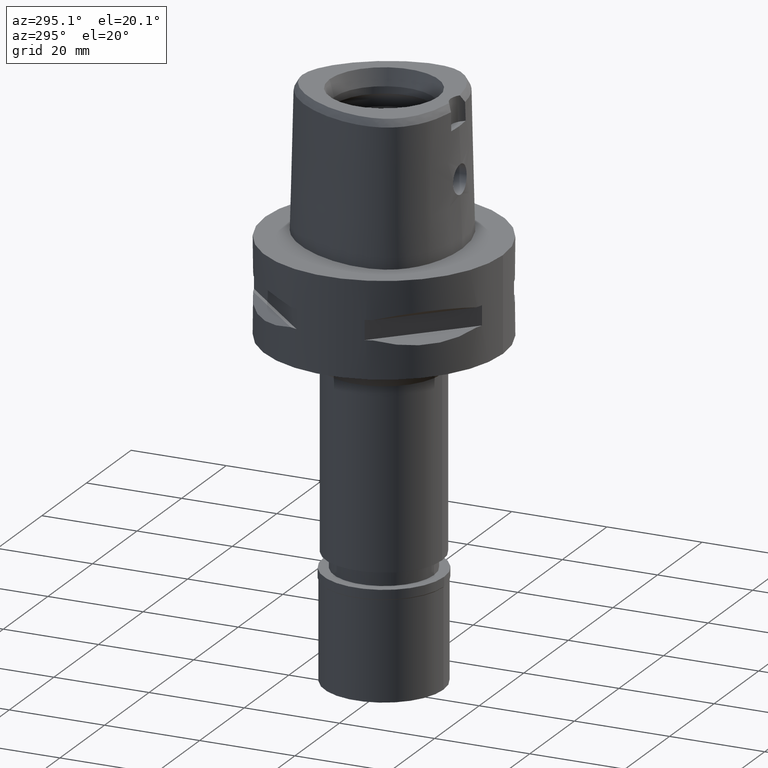
[diagram: clean part render]
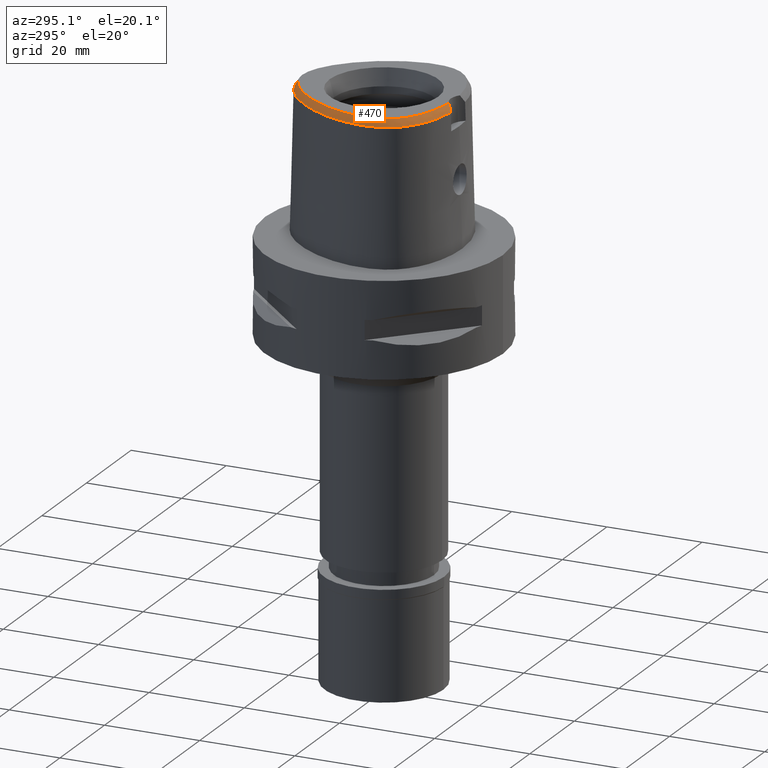
[diagram: same view with one face highlighted and labeled with its STEP entity id]
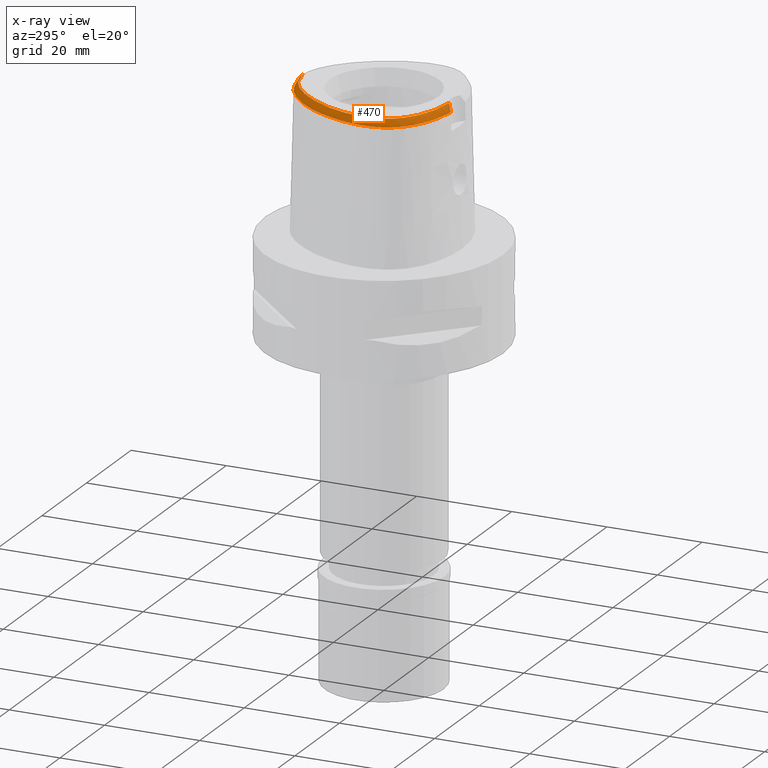
[diagram: x-ray of the same camera — body ghosted, the highlighted face saturated]
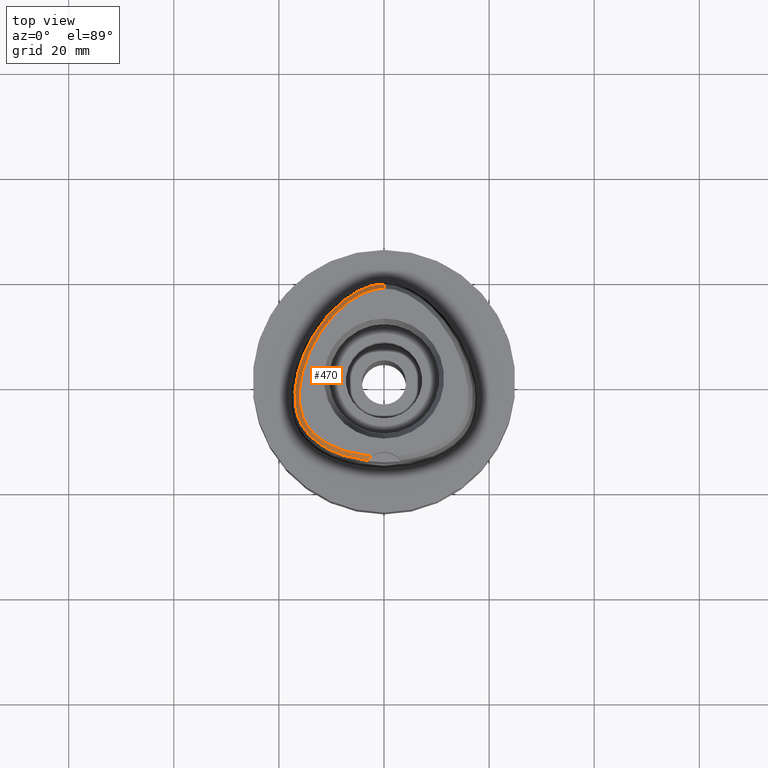
[diagram: same view with one face highlighted and labeled with its STEP entity id]
A machine part, auxiliary view. The second image highlights one B-rep face of the part: STEP entity #470.
The next image is the same camera in x-ray: the body ghosted, the highlighted face saturated — about 0% of this face is hidden behind the body in this view.
A second angle (top view) of the same face is appended — the face is thin or edge-on in the first view.
In plain terms, the highlighted face is a freeform B-spline surface patch.
Its self-contained STEP definition (entity closure, byte-faithful):
#7 = CARTESIAN_POINT ( 'NONE',  ( -6.301949014354000112E-11, 17.15328888647999861, 30.00000000000000000 ) ) ;
#18 = CARTESIAN_POINT ( 'NONE',  ( -0.5624906192435999985, 17.06293124028000108, 30.13803088546999831 ) ) ;
#42 = CARTESIAN_POINT ( 'NONE',  ( -6.186554757815999395, 15.30243447916999955, 29.55289571900000212 ) ) ;
#61 = CARTESIAN_POINT ( 'NONE',  ( -0.5679008307148402102, 17.14013367087397555, 30.00000000000072120 ) ) ;
#94 = CARTESIAN_POINT ( 'NONE',  ( -9.717333709818001708, -12.85804512101999997, 30.13803088923999951 ) ) ;
#114 = CARTESIAN_POINT ( 'NONE',  ( -11.49643627140000035, -12.26311884603000024, 29.55289482792999678 ) ) ;
#139 = CARTESIAN_POINT ( 'NONE',  ( -11.32247005622000025, -11.98503031335000202, 30.13803081457000133 ) ) ;
#180 = CARTESIAN_POINT ( 'NONE',  ( -13.94145098438000119, 5.343248248362000297, 30.13803078236999866 ) ) ;
#185 = CARTESIAN_POINT ( 'NONE',  ( -2.105137871620000212, -15.08222030327999796, 29.55289491099000188 ) ) ;
#189 = CARTESIAN_POINT ( 'NONE',  ( -8.556928701964253037, 13.07433695898570569, 29.99999999999581490 ) ) ;
#202 = CARTESIAN_POINT ( 'NONE',  ( -14.94777343444999929, 2.842147679571000118, 30.13803086633000206 ) ) ;
#210 = CARTESIAN_POINT ( 'NONE',  ( -6.716388962713000232, -14.30164738361999888, 29.55289574461000157 ) ) ;
#214 = CARTESIAN_POINT ( 'NONE',  ( -15.39727819200518155, 1.655076005305519571, 29.99999999999899103 ) ) ;
#231 = CARTESIAN_POINT ( 'NONE',  ( -16.98949126599000081, -4.446471530350000201, 28.38262323389999864 ) ) ;
#255 = CARTESIAN_POINT ( 'NONE',  ( -14.83341090222000069, 5.758522699042999626, 28.38262323189000114 ) ) ;
#260 = CARTESIAN_POINT ( 'NONE',  ( -2.079565656918000105, -14.75540138434000070, 30.13803078892999565 ) ) ;
#264 = CARTESIAN_POINT ( 'NONE',  ( -5.257871200566997416, 15.58649213536815203, 29.99999999999788258 ) ) ;
#283 = CARTESIAN_POINT ( 'NONE',  ( -16.26992570576999952, 1.900719788356000084, 28.38262574464000210 ) ) ;
#289 = CARTESIAN_POINT ( 'NONE',  ( -3.114184317365999988, -14.65881559798999945, 30.13803081346999946 ) ) ;
#309 = CARTESIAN_POINT ( 'NONE',  ( -15.84228689412705471, 3.460033471611907441, 28.52071192347010609 ) ) ;
#321 = CARTESIAN_POINT ( 'NONE',  ( -0.5854254213692000608, 17.39020541118000196, 29.55289459827999821 ) ) ;
#338 = CARTESIAN_POINT ( 'NONE',  ( -10.97230046639000101, 11.82696332493999947, 28.38262172189999788 ) ) ;
#343 = CARTESIAN_POINT ( 'NONE',  ( -3.051394002144999895, 16.53275062418000019, 30.13803095360999862 ) ) ;
#357 = CARTESIAN_POINT ( 'NONE',  ( -11.11900396222473475, 10.19116357425652808, 30.00000000000197531 ) ) ;
#367 = FACE_OUTER_BOUND ( 'NONE', #1651, .T. ) ;
#389 = CARTESIAN_POINT ( 'NONE',  ( -8.075610960039998787, 14.28481568027999948, 28.96775879640999918 ) ) ;
#394 = CARTESIAN_POINT ( 'NONE',  ( -15.84719131491000077, -8.666056156952000933, 28.38262188471999892 ) ) ;
#396 = CARTESIAN_POINT ( 'NONE',  ( -4.463815232395000443, 15.92905795201999730, 30.13803043148000071 ) ) ;
#421 = CARTESIAN_POINT ( 'NONE',  ( -3.379302300466000109, 17.46064606867000180, 28.38262122548000121 ) ) ;
#451 = VERTEX_POINT ( 'NONE', #1111 ) ;
#470 = ADVANCED_FACE ( 'NONE', ( #367 ), #555, .F. ) ;
#471 = CARTESIAN_POINT ( 'NONE',  ( -11.84436870174000056, -12.81929591138000113, 28.38262285464999835 ) ) ;
#548 = CARTESIAN_POINT ( 'NONE',  ( -13.58392508965000012, -11.08039586724999914, 28.96775835789999931 ) ) ;
#555 = B_SPLINE_SURFACE_WITH_KNOTS ( 'NONE', 3, 3, ( 
 ( #1929, #1536, #3048, #3075 ),
 ( #1902, #2641, #2216, #1204 ),
 ( #3417, #4889, #2620, #2692 ),
 ( #18, #321, #4484, #2598 ),
 ( #749, #3440, #4164, #4142 ),
 ( #4122, #1875, #3389, #3024 ),
 ( #1559, #4532, #2240, #1151 ),
 ( #343, #3366, #772, #421 ),
 ( #4192, #2287, #1854, #3788 ),
 ( #396, #1509, #4561, #3742 ),
 ( #1177, #703, #3342, #2666 ),
 ( #801, #42, #4590, #2309 ),
 ( #3814, #4864, #3435, #3067 ),
 ( #4583, #1169, #389, #4909 ),
 ( #3358, #1870, #4553, #1479 ),
 ( #2256, #2968, #4478, #1103 ),
 ( #2660, #1530, #3737, #338 ),
 ( #4880, #744, #1501, #2993 ),
 ( #4505, #2614, #4139, #4528 ),
 ( #1301, #3835, #2854, #4365 ),
 ( #4001, #2461, #3975, #4385 ),
 ( #180, #4799, #2826, #255 ),
 ( #1341, #3603, #1796, #2508 ),
 ( #202, #970, #3679, #4032 ),
 ( #1748, #2876, #668, #283 ),
 ( #3206, #610, #2483, #1046 ),
 ( #4828, #2182, #3278, #1390 ),
 ( #4776, #590, #2104, #1013 ),
 ( #2083, #2128, #1820, #3304 ),
 ( #3232, #640, #3627, #4409 ),
 ( #2440, #2807, #4339, #231 ),
 ( #2156, #1420, #3952, #1769 ),
 ( #2910, #946, #4430, #4063 ),
 ( #2536, #3582, #1722, #4751 ),
 ( #1366, #4725, #1447, #2941 ),
 ( #2561, #4085, #3263, #2168 ),
 ( #4786, #1402, #3690, #394 ),
 ( #1149, #3044, #1926, #1507 ),
 ( #2640, #4588, #3072, #2998 ),
 ( #3415, #1174, #2664, #4190 ),
 ( #1660, #2045, #4237, #2026 ),
 ( #2445, #3930, #548, #3561 ),
 ( #882, #3958, #851, #1705 ),
 ( #2352, #3861, #4709, #3512 ),
 ( #139, #114, #3491, #471 ),
 ( #4660, #1282, #2004, #2810 ),
 ( #94, #4297, #908, #3118 ),
 ( #2400, #1251, #3906, #2739 ),
 ( #4266, #1684, #2516, #1775 ),
 ( #4389, #210, #1454, #2860 ),
 ( #2948, #3283, #2885, #995 ),
 ( #1077, #4757, #2465, #1397 ),
 ( #289, #4835, #3585, #2566 ),
 ( #648, #1020, #2160, #1372 ),
 ( #260, #185, #4732, #3634 ),
 ( #1729, #1344, #2487, #4806 ) ),
 .UNSPECIFIED., .F., .F., .F.,
 ( 4, 1, 1, 1, 1, 1, 1, 1, 1, 1, 1, 1, 1, 1, 1, 1, 1, 1, 1, 1, 1, 1, 1, 1, 1, 1, 1, 1, 1, 1, 1, 1, 1, 1, 1, 1, 1, 1, 1, 1, 1, 1, 1, 1, 1, 1, 1, 1, 1, 1, 1, 1, 1, 4 ),
 ( 4, 4 ),
 ( -0.01581534407490000141, 0.0000000000000000000, 0.01988866185210999907, 0.03977732370550000202, 0.05966598555888999456, 0.07955464741227999403, 0.09944330926566999351, 0.1193319711189999993, 0.1392206329725000080, 0.1591092948258999995, 0.1789979566792000154, 0.1988866185326000069, 0.2187752803859999984, 0.2386639422393999899, 0.2585526040928000091, 0.2784412659462000006, 0.2983299277995000165, 0.3182185896529999836, 0.3381072515063999750, 0.3579959133596999910, 0.3778845752130999824, 0.3977732370665000294, 0.4176618989199999965, 0.4375505607732999569, 0.4574392226267000039, 0.4773278844800999954, 0.4972165463333999558, 0.5171052081869000894, 0.5369938700402999698, 0.5568825318935999302, 0.5767711937470000327, 0.5966598556004999443, 0.6165485174538000157, 0.6364371793072000072, 0.6563258411605999987, 0.6762145030139999902, 0.6961031648674000927, 0.7159918267207999731, 0.7358804885742000756, 0.7557691504275000360, 0.7756578122808999165, 0.7955464741344000501, 0.8154351359877000105, 0.8353237978411000020, 0.8552124596944999935, 0.8751011215478000649, 0.8949897834012999764, 0.9148784452547000789, 0.9347671071080999594, 0.9546557689613999198, 0.9745444308149000534, 0.9944330926682999339, 1.000000000000000000, 1.006911813929000088 ),
 ( -0.07048919362354999496, 1.070525133128000128 ),
 .UNSPECIFIED. ) ;
#583 = VERTEX_POINT ( 'NONE', #1518 ) ;
#590 = CARTESIAN_POINT ( 'NONE',  ( -16.29009670242000141, -1.630379163938999953, 29.55289450592000122 ) ) ;
#596 = CARTESIAN_POINT ( 'NONE',  ( -15.51623783590409644, -7.150856098906031022, 29.99999999999568701 ) ) ;
#610 = CARTESIAN_POINT ( 'NONE',  ( -15.93442307427999793, 0.5441272224256999968, 29.55289574936000108 ) ) ;
#612 = EDGE_CURVE ( 'NONE', #451, #2983, #3619, .T. ) ;
#625 = CARTESIAN_POINT ( 'NONE',  ( -11.92713521269342181, 9.060544494662234882, 29.99999999999836930 ) ) ;
#640 = CARTESIAN_POINT ( 'NONE',  ( -16.37604273856999626, -3.539743260772000077, 29.55289472451999799 ) ) ;
#648 = CARTESIAN_POINT ( 'NONE',  ( -2.369044125210999940, -14.73185658134999976, 30.13803078972999927 ) ) ;
#652 = CARTESIAN_POINT ( 'NONE',  ( -9.420854217682926190, 12.20577134109916173, 30.00000000000076739 ) ) ;
#666 = CARTESIAN_POINT ( 'NONE',  ( -7.523733151595394020, 15.26501052509573242, 28.52071192347010609 ) ) ;
#668 = CARTESIAN_POINT ( 'NONE',  ( -15.95421859601000136, 1.811850585665000013, 28.96776068573999652 ) ) ;
#669 = B_SPLINE_CURVE_WITH_KNOTS ( 'NONE', 3,
 ( #2545, #4810, #2863, #998, #4155, #2633, #2920, #4736, #2469, #1892, #4070, #3638, #4046, #2165, #2491, #3610, #3986, #4761, #1780, #3261, #596, #3017, #2113, #1756, #677, #1400, #2520, #4012, #2891, #3241, #214, #2252, #1375, #3756, #1025, #4392, #625, #357, #3287, #652, #189, #3660, #3588, #1431, #264, #1803, #3383, #1526, #1733, #4904, #1349, #61, #1968, #7 ),
 .UNSPECIFIED., .F., .F.,
 ( 4, 1, 1, 1, 1, 1, 1, 1, 1, 1, 1, 1, 1, 1, 1, 1, 1, 1, 1, 1, 1, 1, 1, 1, 1, 1, 1, 1, 1, 1, 1, 1, 1, 1, 1, 1, 1, 1, 1, 1, 1, 1, 1, 1, 1, 1, 1, 1, 1, 1, 1, 4 ),
 ( 0.0000000000000000000, 0.005566907331700066131, 0.02545556918509994659, 0.04534423103860008020, 0.06523289289190004059, 0.08512155474529992105, 0.1050102165987000236, 0.1248988784521999351, 0.1447875403055000065, 0.1646762021588999980, 0.1845648640122999895, 0.2044535258655999499, 0.2243421877191000835, 0.2442308495724999640, 0.2641195114257999244, 0.2840081732792000269, 0.3038968351325999073, 0.3237854969860000098, 0.3436741588394000013, 0.3635628206927999928, 0.3834514825461999843, 0.4033401443995000557, 0.4232288062529999673, 0.4431174681064000698, 0.4630061299597000302, 0.4828947918130999106, 0.5027834536666000442, 0.5226721155199000046, 0.5425607773732999961, 0.5624494392267000986, 0.5823381010799999480, 0.6022267629334999706, 0.6221154247869000731, 0.6420040866403000646, 0.6618927484936000250, 0.6817814103470000164, 0.7016700722005000390, 0.7215587340537999994, 0.7414473959071999909, 0.7613360577605999824, 0.7812247196139999739, 0.8011133814673999654, 0.8210020433207999568, 0.8408907051741000283, 0.8607793670275000197, 0.8806680288810000423, 0.9005566907343299787, 0.9204453525877199782, 0.9403340144411099777, 0.9602226762944999772, 0.9801113381478899766, 1.000000000000000000 ),
 .UNSPECIFIED. ) ;
#677 = CARTESIAN_POINT ( 'NONE',  ( -16.08550869466741418, -4.376322360225388231, 30.00000000000387601 ) ) ;
#703 = CARTESIAN_POINT ( 'NONE',  ( -5.384285942371000111, 15.80291348866999890, 29.55289641946000145 ) ) ;
#744 = CARTESIAN_POINT ( 'NONE',  ( -11.31899364911999939, 10.34217618864000166, 29.55289486231000140 ) ) ;
#749 = CARTESIAN_POINT ( 'NONE',  ( -1.149432066685000198, 17.00197830347000050, 30.13803089093999787 ) ) ;
#772 = CARTESIAN_POINT ( 'NONE',  ( -3.269999534359000037, 17.15134758717999830, 28.96775780152000124 ) ) ;
#801 = CARTESIAN_POINT ( 'NONE',  ( -6.004402664135999323, 15.02965676946999807, 30.13803053947999899 ) ) ;
#851 = CARTESIAN_POINT ( 'NONE',  ( -13.01840081075000199, -11.57534735946999938, 28.96775835466999993 ) ) ;
#882 = CARTESIAN_POINT ( 'NONE',  ( -12.60310728760000032, -11.06743747109999987, 30.13803087963999872 ) ) ;
#908 = CARTESIAN_POINT ( 'NONE',  ( -9.995719519109000473, -13.45205045896999962, 28.96775828292999933 ) ) ;
#946 = CARTESIAN_POINT ( 'NONE',  ( -16.11838250522000138, -5.923322950403999698, 29.55289460343999863 ) ) ;
#970 = CARTESIAN_POINT ( 'NONE',  ( -15.25816821456000127, 2.948074670152000198, 29.55289466027000245 ) ) ;
#995 = CARTESIAN_POINT ( 'NONE',  ( -5.628928192961000221, -15.24327083605000155, 28.38262333496999901 ) ) ;
#998 = CARTESIAN_POINT ( 'NONE',  ( -4.150496093830849276, -14.59917355180183129, 29.99999999999942446 ) ) ;
#1011 = CARTESIAN_POINT ( 'NONE',  ( -1.893775706185675922, 17.84807082153568203, 28.52071192347010253 ) ) ;
#1013 = CARTESIAN_POINT ( 'NONE',  ( -16.94252281717000130, -1.562012150778999908, 28.38262168981999878 ) ) ;
#1020 = CARTESIAN_POINT ( 'NONE',  ( -2.398221394487000335, -15.05838242436000129, 29.55289490839000166 ) ) ;
#1025 = CARTESIAN_POINT ( 'NONE',  ( -13.38439869301224583, 6.635703175839059220, 29.99999999999688427 ) ) ;
#1046 = CARTESIAN_POINT ( 'NONE',  ( -16.57473080096999851, 0.6865959521810000021, 28.38262618787999614 ) ) ;
#1077 = CARTESIAN_POINT ( 'NONE',  ( -4.138298135022999702, -14.52277485075999941, 30.13803091476000162 ) ) ;
#1103 = CARTESIAN_POINT ( 'NONE',  ( -10.08139982236999899, 12.82667832543000053, 28.38262403451999916 ) ) ;
#1111 = CARTESIAN_POINT ( 'NONE',  ( -2.940965197940999906E-11, 17.98202997909999823, 28.52071728569000086 ) ) ;
#1121 = CARTESIAN_POINT ( 'NONE',  ( -14.26907056455281086, -10.79012254419703964, 28.52071192347010609 ) ) ;
#1149 = CARTESIAN_POINT ( 'NONE',  ( -14.69714516587999853, -8.704381754124000281, 30.13803085658999947 ) ) ;
#1151 = CARTESIAN_POINT ( 'NONE',  ( -2.656981870916999888, 17.68886659922000248, 28.38262205176999942 ) ) ;
#1169 = CARTESIAN_POINT ( 'NONE',  ( -7.863056663427998139, 14.03502177028000020, 29.55289480848999872 ) ) ;
#1174 = CARTESIAN_POINT ( 'NONE',  ( -14.27452215424000137, -9.865631361213999639, 29.55289480134000257 ) ) ;
#1177 = CARTESIAN_POINT ( 'NONE',  ( -5.218844298452999908, 15.51967829031999990, 30.13803032323000153 ) ) ;
#1204 = CARTESIAN_POINT ( 'NONE',  ( 0.3385944463789999914, 18.05476595133999851, 28.38262226155999812 ) ) ;
#1251 = CARTESIAN_POINT ( 'NONE',  ( -8.902922939647000433, -13.56953361064000063, 29.55289466238999907 ) ) ;
#1277 = B_SPLINE_CURVE_WITH_KNOTS ( 'NONE', 3,
 ( #4874, #1495, #2984, #2205, #4497, #3704, #1121, #4855, #4426, #2607, #1521, #4028, #4060, #4131, #309, #3752, #1445, #666, #4405, #1011, #2505, #1838 ),
 .UNSPECIFIED., .F., .F.,
 ( 4, 1, 1, 1, 1, 1, 1, 1, 1, 1, 1, 1, 1, 1, 1, 1, 1, 1, 1, 4 ),
 ( 0.0000000000000000000, 0.03108635432773906859, 0.1191694130250540162, 0.1632109423737113651, 0.2072524717223688528, 0.2512940010710263405, 0.2733147657453551260, 0.2953355304196838005, 0.3173562950940124749, 0.3393770597683412604, 0.3834185891169987204, 0.4274601184656560693, 0.4715016478143136958, 0.5595847065116285046, 0.6476677652089434245, 0.7357508239062583444, 0.8238338826034675710, 0.9119169413008565428, 0.9559584706495034556, 1.000000000000000000 ),
 .UNSPECIFIED. ) ;
#1282 = CARTESIAN_POINT ( 'NONE',  ( -10.71990791745999871, -12.71752559025000018, 29.55289463617000223 ) ) ;
#1301 = CARTESIAN_POINT ( 'NONE',  ( -12.62016670663999918, 7.829716945448000232, 30.13803086633999939 ) ) ;
#1341 = CARTESIAN_POINT ( 'NONE',  ( -14.48720914693000061, 4.083535288299999344, 30.13803088239000161 ) ) ;
#1344 = CARTESIAN_POINT ( 'NONE',  ( -1.942306105969000107, -15.09396419640999909, 29.55289490514000050 ) ) ;
#1349 = CARTESIAN_POINT ( 'NONE',  ( -1.160151454488176137, 17.07862209883444393, 29.99999999999523226 ) ) ;
#1366 = CARTESIAN_POINT ( 'NONE',  ( -15.44325970673999926, -7.125102936123999697, 30.13803084437000024 ) ) ;
#1372 = CARTESIAN_POINT ( 'NONE',  ( -2.456575933041000415, -15.71143411038999815, 28.38262314570999933 ) ) ;
#1375 = CARTESIAN_POINT ( 'NONE',  ( -14.55898035934180790, 4.112421202110447815, 30.00000000000115818 ) ) ;
#1390 = CARTESIAN_POINT ( 'NONE',  ( -16.79691299573000052, -0.4696977972738000107, 28.38262330396999999 ) ) ;
#1397 = CARTESIAN_POINT ( 'NONE',  ( -4.293425771215000353, -15.49437592660000007, 28.38262168066999891 ) ) ;
#1400 = CARTESIAN_POINT ( 'NONE',  ( -16.12543283908587100, -3.535877041748220151, 30.00000000000280309 ) ) ;
#1402 = CARTESIAN_POINT ( 'NONE',  ( -15.26422381473999934, -8.364895853791001201, 29.55289455980999946 ) ) ;
#1420 = CARTESIAN_POINT ( 'NONE',  ( -16.24766335493000113, -5.189032657659000236, 29.55289467993999963 ) ) ;
#1431 = CARTESIAN_POINT ( 'NONE',  ( -6.047371482394591879, 15.09400374235581488, 30.00000000000050449 ) ) ;
#1445 = CARTESIAN_POINT ( 'NONE',  ( -10.91764528034740778, 11.98972044748099464, 28.52071192347010609 ) ) ;
#1447 = CARTESIAN_POINT ( 'NONE',  ( -16.06199299096000033, -7.343446968366999172, 28.96775861840000132 ) ) ;
#1454 = CARTESIAN_POINT ( 'NONE',  ( -6.802955115757999494, -14.61799568960000073, 28.96776095765000036 ) ) ;
#1479 = CARTESIAN_POINT ( 'NONE',  ( -9.182284596532998222, 13.73069407482000059, 28.38262482665000164 ) ) ;
#1495 = CARTESIAN_POINT ( 'NONE',  ( -3.738627773282984013, -15.49270868800090817, 28.52071192347010253 ) ) ;
#1501 = CARTESIAN_POINT ( 'NONE',  ( -11.58072437843000024, 10.53980958819000158, 28.96775892067000058 ) ) ;
#1507 = CARTESIAN_POINT ( 'NONE',  ( -15.53747195582999829, -9.216824381653999865, 28.38262236229000024 ) ) ;
#1509 = CARTESIAN_POINT ( 'NONE',  ( -4.611531212632000276, 16.22193896879999997, 29.55289606881999731 ) ) ;
#1518 = CARTESIAN_POINT ( 'NONE',  ( -2.406542353497000075, -14.80491723099000012, 30.00000000000000000 ) ) ;
#1521 = CARTESIAN_POINT ( 'NONE',  ( -16.47905549556842075, -6.962316292880086799, 28.52071192347010609 ) ) ;
#1526 = CARTESIAN_POINT ( 'NONE',  ( -3.077178008230937234, 16.60571267457824973, 30.00000000000201794 ) ) ;
#1530 = CARTESIAN_POINT ( 'NONE',  ( -10.47071083533000113, 11.40427486175000027, 29.55289451478999752 ) ) ;
#1536 = CARTESIAN_POINT ( 'NONE',  ( 0.4772461948651999797, 17.39109462925999594, 29.55289456847999929 ) ) ;
#1559 = CARTESIAN_POINT ( 'NONE',  ( -2.390703024946000177, 16.74141770822999931, 30.13803088308999989 ) ) ;
#1651 = EDGE_LOOP ( 'NONE', ( #3819, #3838, #3768, #4638 ) ) ;
#1660 = CARTESIAN_POINT ( 'NONE',  ( -13.60695408260000150, -10.13056006989999958, 30.13803087315000084 ) ) ;
#1684 = CARTESIAN_POINT ( 'NONE',  ( -7.856265420726999515, -13.95429227918999970, 29.55289554903999871 ) ) ;
#1705 = CARTESIAN_POINT ( 'NONE',  ( -13.22604757232000061, -11.82930230366000046, 28.38262209218000010 ) ) ;
#1722 = CARTESIAN_POINT ( 'NONE',  ( -16.26811632295000365, -6.691719249859000129, 28.96775838842999917 ) ) ;
#1729 = CARTESIAN_POINT ( 'NONE',  ( -1.918728850154999943, -14.76700142341999999, 30.13803079072999935 ) ) ;
#1733 = CARTESIAN_POINT ( 'NONE',  ( -2.411640998825227644, 16.81591728050885592, 29.99999999999837286 ) ) ;
#1748 = CARTESIAN_POINT ( 'NONE',  ( -15.32280437648000060, 1.634112180283999960, 30.13803056792999868 ) ) ;
#1756 = CARTESIAN_POINT ( 'NONE',  ( -15.99949242929116622, -5.153835065648640246, 30.00000000000049027 ) ) ;
#1769 = CARTESIAN_POINT ( 'NONE',  ( -16.89723642408999993, -5.281160322535999541, 28.38262231928000290 ) ) ;
#1775 = CARTESIAN_POINT ( 'NONE',  ( -8.064425137630999885, -14.57635915886000078, 28.38262546320000013 ) ) ;
#1780 = CARTESIAN_POINT ( 'NONE',  ( -15.04149970408031045, -8.249836848499958464, 30.00000000000303757 ) ) ;
#1796 = CARTESIAN_POINT ( 'NONE',  ( -15.09570978233999838, 4.328439844286999794, 28.96775833411999912 ) ) ;
#1803 = CARTESIAN_POINT ( 'NONE',  ( -4.498660734197694744, 15.99814720006078517, 29.99999999999825562 ) ) ;
#1820 = CARTESIAN_POINT ( 'NONE',  ( -16.69088828535999980, -2.603744700328999961, 28.96775843103000270 ) ) ;
#1838 = CARTESIAN_POINT ( 'NONE',  ( -2.940965197940999906E-11, 17.98202997909999823, 28.52071728569000086 ) ) ;
#1854 = CARTESIAN_POINT ( 'NONE',  ( -3.999485184432999940, 16.86757252368999715, 28.96775905027999798 ) ) ;
#1870 = CARTESIAN_POINT ( 'NONE',  ( -8.729801093322999250, 13.25577927877000128, 29.55289537307000103 ) ) ;
#1875 = CARTESIAN_POINT ( 'NONE',  ( -1.824410533461999995, 17.21728014042000154, 29.55289474784999726 ) ) ;
#1892 = CARTESIAN_POINT ( 'NONE',  ( -10.60021164903213275, -12.49731984708754418, 29.99999999999841194 ) ) ;
#1902 = CARTESIAN_POINT ( 'NONE',  ( 0.3022783671629999946, 17.07184048741000026, 30.13803086517999930 ) ) ;
#1926 = CARTESIAN_POINT ( 'NONE',  ( -15.25736302584999926, -9.046010172477000566, 28.96775852705999910 ) ) ;
#1929 = CARTESIAN_POINT ( 'NONE',  ( 0.4591721651460999865, 17.06379706064999979, 30.13803089465999818 ) ) ;
#1968 = CARTESIAN_POINT ( 'NONE',  ( -0.1909045559979553608, 17.15328888648161154, 30.00000000000167688 ) ) ;
#1989 = VERTEX_POINT ( 'NONE', #3910 ) ;
#2004 = CARTESIAN_POINT ( 'NONE',  ( -10.87655695329999794, -13.00571349957999878, 28.96775839856000090 ) ) ;
#2026 = CARTESIAN_POINT ( 'NONE',  ( -14.32466547613999985, -10.80397724856999986, 28.38262216821999928 ) ) ;
#2045 = CARTESIAN_POINT ( 'NONE',  ( -13.84619121378000095, -10.35503246278999967, 29.55289463816999884 ) ) ;
#2078 = EDGE_CURVE ( 'NONE', #583, #2983, #669, .T. ) ;
#2083 = CARTESIAN_POINT ( 'NONE',  ( -16.03554344776999940, -2.633405869596000315, 30.13803086943000054 ) ) ;
#2104 = CARTESIAN_POINT ( 'NONE',  ( -16.61630975978999913, -1.596195657358999931, 28.96775809787000000 ) ) ;
#2113 = CARTESIAN_POINT ( 'NONE',  ( -15.87300767660479117, -5.872112237378489752, 30.00000000000283862 ) ) ;
#2128 = CARTESIAN_POINT ( 'NONE',  ( -16.36321586657000182, -2.618575284963000183, 29.55289465023000162 ) ) ;
#2156 = CARTESIAN_POINT ( 'NONE',  ( -15.92287682035000174, -5.142968825220999740, 30.13803086025999889 ) ) ;
#2160 = CARTESIAN_POINT ( 'NONE',  ( -2.427398663763999931, -15.38490826737000106, 28.96775902705000050 ) ) ;
#2165 = CARTESIAN_POINT ( 'NONE',  ( -13.18915979441186082, -10.65722997876254752, 30.00000000000103029 ) ) ;
#2168 = CARTESIAN_POINT ( 'NONE',  ( -16.12480016612000000, -8.080617951476000371, 28.38262260700000184 ) ) ;
#2182 = CARTESIAN_POINT ( 'NONE',  ( -16.14955827632000052, -0.5757364019459000337, 29.55289495214000084 ) ) ;
#2205 = CARTESIAN_POINT ( 'NONE',  ( -8.702202515497392099, -14.36510996956199548, 28.52071192347010609 ) ) ;
#2216 = CARTESIAN_POINT ( 'NONE',  ( 0.3264890866403999947, 17.72712413003000265, 28.96775846277000355 ) ) ;
#2225 = B_SPLINE_CURVE_WITH_KNOTS ( 'NONE', 3,
 ( #4690, #3103, #4300, #2773 ),
 .UNSPECIFIED., .F., .F.,
 ( 4, 4 ),
 ( 0.0000000000000000000, 1.000000000000000000 ),
 .UNSPECIFIED. ) ;
#2240 = CARTESIAN_POINT ( 'NONE',  ( -2.568222255593000103, 17.37305030222000113, 28.96775832887000135 ) ) ;
#2252 = CARTESIAN_POINT ( 'NONE',  ( -15.02099409651068385, 2.867135356160372073, 29.99999999999855049 ) ) ;
#2256 = CARTESIAN_POINT ( 'NONE',  ( -9.364481683832000414, 12.15278166143999883, 30.13803071387999921 ) ) ;
#2287 = CARTESIAN_POINT ( 'NONE',  ( -3.870482235252000081, 16.56596944598000221, 29.55289491845000072 ) ) ;
#2309 = CARTESIAN_POINT ( 'NONE',  ( -6.550858945177000514, 15.84798989858000162, 28.38262607804000126 ) ) ;
#2352 = CARTESIAN_POINT ( 'NONE',  ( -12.00065625032999961, -11.52968426984000061, 30.13803079816999997 ) ) ;
#2390 = EDGE_CURVE ( 'NONE', #1989, #451, #1277, .T. ) ;
#2400 = CARTESIAN_POINT ( 'NONE',  ( -8.781293779128001020, -13.26492544665000040, 30.13803086568000111 ) ) ;
#2440 = CARTESIAN_POINT ( 'NONE',  ( -16.00836067075999836, -4.370335663108000368, 30.13803078220999865 ) ) ;
#2445 = CARTESIAN_POINT ( 'NONE',  ( -13.13637196008999908, -10.60064443013000002, 30.13803087920999957 ) ) ;
#2461 = CARTESIAN_POINT ( 'NONE',  ( -13.60569306180000027, 6.753297411975999864, 29.55289475908999819 ) ) ;
#2465 = CARTESIAN_POINT ( 'NONE',  ( -4.241716559151000432, -15.17050890131999985, 28.96775809204000041 ) ) ;
#2469 = CARTESIAN_POINT ( 'NONE',  ( -9.750168658358774110, -12.92810664734042270, 30.00000000000347100 ) ) ;
#2483 = CARTESIAN_POINT ( 'NONE',  ( -16.25457693761999778, 0.6153615873033000394, 28.96776096861999861 ) ) ;
#2487 = CARTESIAN_POINT ( 'NONE',  ( -1.965883361784000138, -15.42092696939999996, 28.96775901954000076 ) ) ;
#2491 = CARTESIAN_POINT ( 'NONE',  ( -13.66338899148683161, -10.18351204678532973, 29.99999999999680611 ) ) ;
#2505 = CARTESIAN_POINT ( 'NONE',  ( -0.6295828121028675950, 17.98203011041537280, 28.52071192347010609 ) ) ;
#2508 = CARTESIAN_POINT ( 'NONE',  ( -15.39996010005000038, 4.450892122281000063, 28.38262205998999832 ) ) ;
#2516 = CARTESIAN_POINT ( 'NONE',  ( -7.960345279179000144, -14.26532571901999980, 28.96776050611999764 ) ) ;
#2520 = CARTESIAN_POINT ( 'NONE',  ( -16.11283982316312091, -2.629907404753282218, 29.99999999999906919 ) ) ;
#2536 = CARTESIAN_POINT ( 'NONE',  ( -15.63610721792000113, -6.515521734620000061, 30.13803087512000189 ) ) ;
#2545 = CARTESIAN_POINT ( 'NONE',  ( -2.406542353497000075, -14.80491723099000012, 30.00000000000000000 ) ) ;
#2554 = CARTESIAN_POINT ( 'NONE',  ( -2.940965197940999906E-11, 17.98202997909999823, 28.52071728569000086 ) ) ;
#2561 = CARTESIAN_POINT ( 'NONE',  ( -15.22124750951000038, -7.690415057280000077, 30.13803083569999686 ) ) ;
#2566 = CARTESIAN_POINT ( 'NONE',  ( -3.229815034626000170, -15.63563909570000021, 28.38262286751000119 ) ) ;
#2598 = CARTESIAN_POINT ( 'NONE',  ( -0.6312950256204000743, 18.04475375298000017, 28.38262202391999978 ) ) ;
#2607 = CARTESIAN_POINT ( 'NONE',  ( -16.01658395504083643, -8.155509241189935921, 28.52071192347010609 ) ) ;
#2614 = CARTESIAN_POINT ( 'NONE',  ( -12.13483599975999994, 9.200758950791000146, 29.55289500672999736 ) ) ;
#2620 = CARTESIAN_POINT ( 'NONE',  ( -0.04372256407822000535, 17.73719080661999925, 28.96775862107999799 ) ) ;
#2633 = CARTESIAN_POINT ( 'NONE',  ( -6.650243356160381758, -14.05992414833156801, 30.00000000000552447 ) ) ;
#2640 = CARTESIAN_POINT ( 'NONE',  ( -14.38300427951999794, -9.181888297847001112, 30.13803087723000118 ) ) ;
#2641 = CARTESIAN_POINT ( 'NONE',  ( 0.3143837269016999669, 17.39948230872000323, 29.55289466397999831 ) ) ;
#2660 = CARTESIAN_POINT ( 'NONE',  ( -10.21991601979999942, 11.19293063016000112, 30.13803091124000133 ) ) ;
#2664 = CARTESIAN_POINT ( 'NONE',  ( -14.52841020355000090, -10.07340164143000116, 28.96775877990999604 ) ) ;
#2666 = CARTESIAN_POINT ( 'NONE',  ( -5.715169230205000339, 16.36938388537000222, 28.38262861189999953 ) ) ;
#2692 = CARTESIAN_POINT ( 'NONE',  ( -0.04525908919868999736, 18.06521636989999990, 28.38262250960999822 ) ) ;
#2739 = CARTESIAN_POINT ( 'NONE',  ( -9.146181260685001035, -14.17874993862000110, 28.38262225579999765 ) ) ;
#2773 = CARTESIAN_POINT ( 'NONE',  ( -3.168920966622999824, -15.55911077538999976, 28.52071192346999950 ) ) ;
#2807 = CARTESIAN_POINT ( 'NONE',  ( -16.33540420250000125, -4.395714285522000608, 29.55289493276999835 ) ) ;
#2810 = CARTESIAN_POINT ( 'NONE',  ( -11.03320598914000072, -13.29390140890999916, 28.38262216096000046 ) ) ;
#2826 = CARTESIAN_POINT ( 'NONE',  ( -14.53609092960999938, 5.620097882148999524, 28.96775908204999794 ) ) ;
#2854 = CARTESIAN_POINT ( 'NONE',  ( -13.18237185369999942, 8.167600347313999976, 28.96775845409000283 ) ) ;
#2860 = CARTESIAN_POINT ( 'NONE',  ( -6.889521268802999643, -14.93434399556999814, 28.38262617067999827 ) ) ;
#2863 = CARTESIAN_POINT ( 'NONE',  ( -3.123276563984865195, -14.73562494724683702, 29.99999999999595346 ) ) ;
#2876 = CARTESIAN_POINT ( 'NONE',  ( -15.63851148624000054, 1.722981382975000031, 29.55289562683999804 ) ) ;
#2885 = CARTESIAN_POINT ( 'NONE',  ( -5.559809215961999840, -14.92266353966999937, 28.96775914783999895 ) ) ;
#2891 = CARTESIAN_POINT ( 'NONE',  ( -15.90223487643982736, -0.6162487013689363913, 29.99999999999582911 ) ) ;
#2910 = CARTESIAN_POINT ( 'NONE',  ( -15.79725528190000006, -5.856302408113999824, 30.13803088387999907 ) ) ;
#2920 = CARTESIAN_POINT ( 'NONE',  ( -7.776737509122555458, -13.71663015822307052, 30.00000000000013856 ) ) ;
#2941 = CARTESIAN_POINT ( 'NONE',  ( -16.37135963305999908, -7.452618984487999754, 28.38262250542000231 ) ) ;
#2948 = CARTESIAN_POINT ( 'NONE',  ( -5.421571261963999966, -14.28144894691000033, 30.13803077357999882 ) ) ;
#2968 = CARTESIAN_POINT ( 'NONE',  ( -9.603454396676999849, 12.37741388276999999, 29.55289515408999890 ) ) ;
#2983 = VERTEX_POINT ( 'NONE', #3147 ) ;
#2984 = CARTESIAN_POINT ( 'NONE',  ( -5.902447850707896571, -15.16907854012099754, 28.52071192347010609 ) ) ;
#2993 = CARTESIAN_POINT ( 'NONE',  ( -11.84245510773000021, 10.73744298773999972, 28.38262297901999887 ) ) ;
#2998 = CARTESIAN_POINT ( 'NONE',  ( -15.18565526054000081, -9.751477835018000917, 28.38262212043000332 ) ) ;
#3017 = CARTESIAN_POINT ( 'NONE',  ( -15.71065119878653782, -6.536303815289303820, 29.99999999999236877 ) ) ;
#3024 = CARTESIAN_POINT ( 'NONE',  ( -1.959287219247999978, 17.85938998552000356, 28.38262256498999747 ) ) ;
#3044 = CARTESIAN_POINT ( 'NONE',  ( -14.97725409587000023, -8.875195963300999580, 29.55289469182000062 ) ) ;
#3048 = CARTESIAN_POINT ( 'NONE',  ( 0.4953202245842000528, 17.71839219788000008, 28.96775824230999774 ) ) ;
#3067 = CARTESIAN_POINT ( 'NONE',  ( -7.409609148877999374, 15.23846331945000010, 28.38262162167000113 ) ) ;
#3072 = CARTESIAN_POINT ( 'NONE',  ( -14.91810493352999956, -9.561614655960999798, 28.96775837270000054 ) ) ;
#3075 = CARTESIAN_POINT ( 'NONE',  ( 0.5133942543032999906, 18.04568976648999978, 28.38262191613999619 ) ) ;
#3091 = VECTOR ( 'NONE', #4104, 1000.000000000000000 ) ;
#3103 = CARTESIAN_POINT ( 'NONE',  ( -2.674237912613295798, -15.00654602981302332, 29.59847415419580230 ) ) ;
#3118 = CARTESIAN_POINT ( 'NONE',  ( -10.13491242375000034, -13.74905312795000079, 28.38262197977999790 ) ) ;
#3147 = CARTESIAN_POINT ( 'NONE',  ( -6.301949014354000112E-11, 17.15328888647999861, 30.00000000000000000 ) ) ;
#3206 = CARTESIAN_POINT ( 'NONE',  ( -15.61426921092999898, 0.4728928575480999541, 30.13803053009999999 ) ) ;
#3232 = CARTESIAN_POINT ( 'NONE',  ( -16.04806426737999914, -3.534683458237000142, 30.13803084649999775 ) ) ;
#3241 = CARTESIAN_POINT ( 'NONE',  ( -15.68979199461648477, 0.4896967076513436545, 29.99999999999498002 ) ) ;
#3261 = CARTESIAN_POINT ( 'NONE',  ( -15.29229544369247229, -7.721097396977317118, 29.99999999999500133 ) ) ;
#3263 = CARTESIAN_POINT ( 'NONE',  ( -15.82361594724999954, -7.950550320076998467, 28.96775868324000314 ) ) ;
#3278 = CARTESIAN_POINT ( 'NONE',  ( -16.47323563602000007, -0.5227170996097999511, 28.96775912805000175 ) ) ;
#3283 = CARTESIAN_POINT ( 'NONE',  ( -5.490690238962999459, -14.60205624328999896, 29.55289496071000244 ) ) ;
#3287 = CARTESIAN_POINT ( 'NONE',  ( -10.27907733181672079, 11.24278573582337515, 29.99999999999662492 ) ) ;
#3304 = CARTESIAN_POINT ( 'NONE',  ( -17.01856070415000133, -2.588914115695999829, 28.38262221184000111 ) ) ;
#3342 = CARTESIAN_POINT ( 'NONE',  ( -5.549727586288000225, 16.08614868701999967, 28.96776251568000049 ) ) ;
#3358 = CARTESIAN_POINT ( 'NONE',  ( -8.503559341718000653, 13.01832188073999852, 30.13803064627000339 ) ) ;
#3366 = CARTESIAN_POINT ( 'NONE',  ( -3.160696768252000410, 16.84204910568000102, 29.55289437756999860 ) ) ;
#3383 = CARTESIAN_POINT ( 'NONE',  ( -3.771910472264550229, 16.33551310926596756, 29.99999999999537437 ) ) ;
#3389 = CARTESIAN_POINT ( 'NONE',  ( -1.891848876355000098, 17.53833506296999900, 28.96775865642000269 ) ) ;
#3415 = CARTESIAN_POINT ( 'NONE',  ( -14.02063410493000184, -9.657861080996999803, 30.13803082277999934 ) ) ;
#3417 = CARTESIAN_POINT ( 'NONE',  ( -0.04064951383726999462, 17.08113968006999883, 30.13803084402000110 ) ) ;
#3435 = CARTESIAN_POINT ( 'NONE',  ( -7.211756511499999966, 14.97686049708000056, 28.96775805437999907 ) ) ;
#3440 = CARTESIAN_POINT ( 'NONE',  ( -1.194873365991000025, 17.32688432507000087, 29.55289458053999851 ) ) ;
#3491 = CARTESIAN_POINT ( 'NONE',  ( -11.67040248656999957, -12.54120737870000113, 28.96775884128999934 ) ) ;
#3512 = CARTESIAN_POINT ( 'NONE',  ( -12.57363388929000081, -12.32976537857999944, 28.38262304685999737 ) ) ;
#3561 = CARTESIAN_POINT ( 'NONE',  ( -13.80770165442999975, -11.32027158580999959, 28.38262209724999963 ) ) ;
#3582 = CARTESIAN_POINT ( 'NONE',  ( -15.95211177043999839, -6.603620492239000050, 29.55289463177000187 ) ) ;
#3585 = CARTESIAN_POINT ( 'NONE',  ( -3.191271462206000553, -15.31003126312999996, 28.96775884950000091 ) ) ;
#3588 = CARTESIAN_POINT ( 'NONE',  ( -6.862723739079271468, 14.51536572208646980, 30.00000000000305889 ) ) ;
#3603 = CARTESIAN_POINT ( 'NONE',  ( -14.79145946463999906, 4.205987566292999524, 29.55289460826000081 ) ) ;
#3610 = CARTESIAN_POINT ( 'NONE',  ( -14.08052509618037007, -9.706873108417658713, 29.99999999999988987 ) ) ;
#3619 = LINE ( 'NONE', #2554, #3091 ) ;
#3627 = CARTESIAN_POINT ( 'NONE',  ( -16.70402120974999960, -3.544803063307000457, 28.96775860254000179 ) ) ;
#3634 = CARTESIAN_POINT ( 'NONE',  ( -2.156282301023999981, -15.73585814115000048, 28.38262315510000278 ) ) ;
#3638 = CARTESIAN_POINT ( 'NONE',  ( -12.04571048959657809, -11.59259605427005191, 30.00000000000285283 ) ) ;
#3660 = CARTESIAN_POINT ( 'NONE',  ( -7.700642921100516958, 13.84415306341914054, 29.99999999999769074 ) ) ;
#3679 = CARTESIAN_POINT ( 'NONE',  ( -15.56856299467999882, 3.054001660733000278, 28.96775845420000195 ) ) ;
#3690 = CARTESIAN_POINT ( 'NONE',  ( -15.55570756482000050, -8.515476005370999246, 28.96775822225999875 ) ) ;
#3704 = CARTESIAN_POINT ( 'NONE',  ( -13.06460239553488734, -11.91950051571214253, 28.52071192347010609 ) ) ;
#3737 = CARTESIAN_POINT ( 'NONE',  ( -10.72150565085999929, 11.61561909335000031, 28.96775811834000081 ) ) ;
#3742 = CARTESIAN_POINT ( 'NONE',  ( -4.906963173104998965, 16.80770100236000175, 28.38262734351000205 ) ) ;
#3752 = CARTESIAN_POINT ( 'NONE',  ( -13.75951393052669758, 7.944084103042049705, 28.52071192347010609 ) ) ;
#3756 = CARTESIAN_POINT ( 'NONE',  ( -14.01158736112988379, 5.375902008631177509, 29.99999999999385381 ) ) ;
#3768 = ORIENTED_EDGE ( 'NONE', *, *, #2390, .F. ) ;
#3788 = CARTESIAN_POINT ( 'NONE',  ( -4.128488133612999711, 17.16917560141000010, 28.38262318210000146 ) ) ;
#3814 = CARTESIAN_POINT ( 'NONE',  ( -6.816051236745000352, 14.45365485232000147, 30.13803091979999849 ) ) ;
#3819 = ORIENTED_EDGE ( 'NONE', *, *, #2078, .T. ) ;
#3835 = CARTESIAN_POINT ( 'NONE',  ( -12.90126928017000019, 7.998658646380999215, 29.55289466022000155 ) ) ;
#3838 = ORIENTED_EDGE ( 'NONE', *, *, #612, .F. ) ;
#3861 = CARTESIAN_POINT ( 'NONE',  ( -12.19164879665000001, -11.79637797275000111, 29.55289488107000295 ) ) ;
#3906 = CARTESIAN_POINT ( 'NONE',  ( -9.024552100165998070, -13.87414177463000087, 28.96775845910000058 ) ) ;
#3910 = CARTESIAN_POINT ( 'NONE',  ( -3.168920966622999824, -15.55911077538999976, 28.52071192346999950 ) ) ;
#3930 = CARTESIAN_POINT ( 'NONE',  ( -13.36014852487000049, -10.84052014869000047, 29.55289461855999988 ) ) ;
#3952 = CARTESIAN_POINT ( 'NONE',  ( -16.57244988951000053, -5.235096490097999045, 28.96775849961000304 ) ) ;
#3958 = CARTESIAN_POINT ( 'NONE',  ( -12.81075404918000160, -11.32139241528000007, 29.55289461715000243 ) ) ;
#3975 = CARTESIAN_POINT ( 'NONE',  ( -13.89530567849000064, 6.907195473738000580, 28.96775868234999862 ) ) ;
#3986 = CARTESIAN_POINT ( 'NONE',  ( -14.44611813752546503, -9.226676124712321680, 29.99999999999818101 ) ) ;
#4001 = CARTESIAN_POINT ( 'NONE',  ( -13.31608044510999811, 6.599399350214000037, 30.13803083582000042 ) ) ;
#4012 = CARTESIAN_POINT ( 'NONE',  ( -16.04083576397722410, -1.656498942829353505, 29.99999999999806377 ) ) ;
#4028 = CARTESIAN_POINT ( 'NONE',  ( -16.85489160760749527, -5.354527567565299684, 28.52071192347010609 ) ) ;
#4032 = CARTESIAN_POINT ( 'NONE',  ( -15.87895777479000259, 3.159928651313999914, 28.38262224813999879 ) ) ;
#4046 = CARTESIAN_POINT ( 'NONE',  ( -12.65209017755763377, -11.12734424253431875, 29.99999999999733546 ) ) ;
#4060 = CARTESIAN_POINT ( 'NONE',  ( -16.99625270563472768, -3.273868231553012986, 28.52071192347010609 ) ) ;
#4063 = CARTESIAN_POINT ( 'NONE',  ( -16.76063695188000224, -6.057364034984000334, 28.38262204256000132 ) ) ;
#4070 = CARTESIAN_POINT ( 'NONE',  ( -11.36350786441725802, -12.05063008428362892, 29.99999999999887024 ) ) ;
#4085 = CARTESIAN_POINT ( 'NONE',  ( -15.52243172838000085, -7.820482688677998340, 29.55289475946999644 ) ) ;
#4104 = DIRECTION ( 'NONE',  ( -1.982169382858034820E-11, -0.4887572537803078765, 0.8724198226067148010 ) ) ;
#4122 = CARTESIAN_POINT ( 'NONE',  ( -1.756972190568999892, 16.89622521786000320, 30.13803083928999982 ) ) ;
#4131 = CARTESIAN_POINT ( 'NONE',  ( -16.79165457291390950, -0.3537785057482769613, 28.52071192347010609 ) ) ;
#4139 = CARTESIAN_POINT ( 'NONE',  ( -12.40665840878999937, 9.384260572454001803, 28.96775925408999797 ) ) ;
#4142 = CARTESIAN_POINT ( 'NONE',  ( -1.285755964605000079, 17.97669636826000072, 28.38262195971999802 ) ) ;
#4155 = CARTESIAN_POINT ( 'NONE',  ( -5.437876102061564687, -14.35707869330603437, 30.00000000000038725 ) ) ;
#4164 = CARTESIAN_POINT ( 'NONE',  ( -1.240314665297999719, 17.65179034666000035, 28.96775827012999827 ) ) ;
#4190 = CARTESIAN_POINT ( 'NONE',  ( -14.78229825284999954, -10.28117192164999949, 28.38262275847999661 ) ) ;
#4192 = CARTESIAN_POINT ( 'NONE',  ( -3.741479286072000310, 16.26436636826000282, 30.13803078661999635 ) ) ;
#4237 = CARTESIAN_POINT ( 'NONE',  ( -14.08542834495999863, -10.57950485567999976, 28.96775840320000128 ) ) ;
#4266 = CARTESIAN_POINT ( 'NONE',  ( -7.752185562274999775, -13.64325883934999872, 30.13803059194999889 ) ) ;
#4297 = CARTESIAN_POINT ( 'NONE',  ( -9.856526614462998381, -13.15504779000000113, 29.55289458608000075 ) ) ;
#4300 = CARTESIAN_POINT ( 'NONE',  ( -2.935844349952529519, -15.25651563088703888, 29.10537812868580332 ) ) ;
#4339 = CARTESIAN_POINT ( 'NONE',  ( -16.66244773424999792, -4.421092907935999961, 28.96775908334000249 ) ) ;
#4365 = CARTESIAN_POINT ( 'NONE',  ( -13.46347442723999954, 8.336542048247000736, 28.38262224796999789 ) ) ;
#4385 = CARTESIAN_POINT ( 'NONE',  ( -14.18491829517999925, 7.061093535498999429, 28.38262260560999906 ) ) ;
#4389 = CARTESIAN_POINT ( 'NONE',  ( -6.629822809669000172, -13.98529907765000146, 30.13803053158000012 ) ) ;
#4392 = CARTESIAN_POINT ( 'NONE',  ( -12.68647747556944694, 7.869569494474625948, 29.99999999999440092 ) ) ;
#4405 = CARTESIAN_POINT ( 'NONE',  ( -4.422474562381185414, 17.08283562090372243, 28.52071192347010609 ) ) ;
#4409 = CARTESIAN_POINT ( 'NONE',  ( -17.03199968092999939, -3.549862865841999948, 28.38262248056000203 ) ) ;
#4426 = CARTESIAN_POINT ( 'NONE',  ( -15.58740380353710719, -8.999391780896468518, 28.52071192347010609 ) ) ;
#4430 = CARTESIAN_POINT ( 'NONE',  ( -16.43950972855000003, -5.990343492694000460, 28.96775832300000175 ) ) ;
#4478 = CARTESIAN_POINT ( 'NONE',  ( -9.842427109521000972, 12.60204610409999937, 28.96775959429999858 ) ) ;
#4484 = CARTESIAN_POINT ( 'NONE',  ( -0.6083602234948000120, 17.71747958207999929, 28.96775831109999899 ) ) ;
#4497 = CARTESIAN_POINT ( 'NONE',  ( -11.33338053122566436, -13.08225253589293580, 28.52071192347010609 ) ) ;
#4505 = CARTESIAN_POINT ( 'NONE',  ( -11.86301359072000139, 9.017257329128998578, 30.13803075936999676 ) ) ;
#4528 = CARTESIAN_POINT ( 'NONE',  ( -12.67848081782999969, 9.567762194116999908, 28.38262350145999946 ) ) ;
#4532 = CARTESIAN_POINT ( 'NONE',  ( -2.479462640269000318, 17.05723400523000066, 29.55289460598000062 ) ) ;
#4553 = CARTESIAN_POINT ( 'NONE',  ( -8.956042844927999624, 13.49323667680000050, 28.96776009985999778 ) ) ;
#4561 = CARTESIAN_POINT ( 'NONE',  ( -4.759247192869000997, 16.51481998558000086, 28.96776170616999835 ) ) ;
#4583 = CARTESIAN_POINT ( 'NONE',  ( -7.650502366816000155, 13.78522786029000180, 30.13803082057000182 ) ) ;
#4588 = CARTESIAN_POINT ( 'NONE',  ( -14.65055460652000008, -9.371751476904000455, 29.55289462496000041 ) ) ;
#4590 = CARTESIAN_POINT ( 'NONE',  ( -6.368706851496999555, 15.57521218888000014, 28.96776089852000169 ) ) ;
#4638 = ORIENTED_EDGE ( 'NONE', *, *, #4793, .F. ) ;
#4660 = CARTESIAN_POINT ( 'NONE',  ( -10.56325888161999949, -12.42933768091999980, 30.13803087376999912 ) ) ;
#4690 = CARTESIAN_POINT ( 'NONE',  ( -2.406542353497000075, -14.80491723099000012, 30.00000000000000000 ) ) ;
#4709 = CARTESIAN_POINT ( 'NONE',  ( -12.38264134296999863, -12.06307167566999894, 28.96775896396000149 ) ) ;
#4725 = CARTESIAN_POINT ( 'NONE',  ( -15.75262634884999891, -7.234274952245000279, 29.55289473139000123 ) ) ;
#4732 = CARTESIAN_POINT ( 'NONE',  ( -2.130710086321999874, -15.40903922222000055, 28.96775903304000011 ) ) ;
#4736 = CARTESIAN_POINT ( 'NONE',  ( -8.809985523415416964, -13.33678107330866780, 30.00000000000215650 ) ) ;
#4751 = CARTESIAN_POINT ( 'NONE',  ( -16.58412087546000180, -6.779818007479000208, 28.38262214507999914 ) ) ;
#4757 = CARTESIAN_POINT ( 'NONE',  ( -4.190007347087000511, -14.84664187603999963, 29.55289450339999746 ) ) ;
#4761 = CARTESIAN_POINT ( 'NONE',  ( -14.76322153899298328, -8.744676018998054801, 29.99999999999901590 ) ) ;
#4776 = CARTESIAN_POINT ( 'NONE',  ( -15.96388364504999835, -1.664562670520000065, 30.13803091398000333 ) ) ;
#4786 = CARTESIAN_POINT ( 'NONE',  ( -14.97274006464999907, -8.214315702209999515, 30.13803089734999929 ) ) ;
#4793 = EDGE_CURVE ( 'NONE', #583, #1989, #2225, .T. ) ;
#4799 = CARTESIAN_POINT ( 'NONE',  ( -14.23877095699999984, 5.481673065255000310, 29.55289493220999830 ) ) ;
#4806 = CARTESIAN_POINT ( 'NONE',  ( -1.989460617598999947, -15.74788974239000083, 28.38262313394999836 ) ) ;
#4810 = CARTESIAN_POINT ( 'NONE',  ( -2.535517866336026493, -14.79323888261848019, 29.99999999999806732 ) ) ;
#4828 = CARTESIAN_POINT ( 'NONE',  ( -15.82588091661000007, -0.6287557042820001163, 30.13803077621999904 ) ) ;
#4835 = CARTESIAN_POINT ( 'NONE',  ( -3.152727889786000048, -14.98442343055999970, 29.55289483147999974 ) ) ;
#4855 = CARTESIAN_POINT ( 'NONE',  ( -15.07117015428031159, -9.793013966485945687, 28.52071192347010609 ) ) ;
#4864 = CARTESIAN_POINT ( 'NONE',  ( -7.013903874122999760, 14.71525767470000190, 29.55289448709000055 ) ) ;
#4874 = CARTESIAN_POINT ( 'NONE',  ( -3.168920966622999824, -15.55911077538999976, 28.52071192346999950 ) ) ;
#4880 = CARTESIAN_POINT ( 'NONE',  ( -11.05726291982000120, 10.14454278908999996, 30.13803080395999956 ) ) ;
#4889 = CARTESIAN_POINT ( 'NONE',  ( -0.04218603895774000051, 17.40916524334999949, 29.55289473254999777 ) ) ;
#4904 = CARTESIAN_POINT ( 'NONE',  ( -1.772880577021694881, 16.97196055715675556, 29.99999999999722178 ) ) ;
#4909 = CARTESIAN_POINT ( 'NONE',  ( -8.288165256652998636, 14.53460959028000055, 28.38262278432999963 ) ) ;